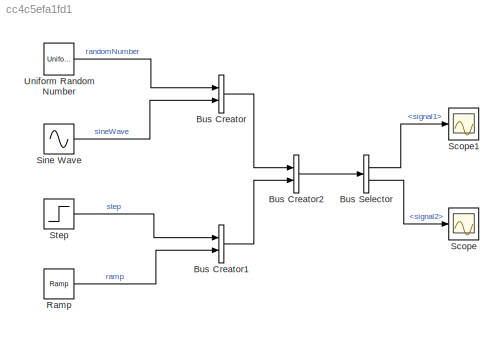
MODEL slx_cc4c5efa1fd1
KIND model
BLOCK [BusCreator] Bus Creator
  DisplayOption = bar
  Inputs = 2
  Ports = [2, 1]
BLOCK [BusCreator] Bus Creator1
  DisplayOption = bar
  Inputs = 2
  Ports = [2, 1]
BLOCK [BusCreator] Bus Creator2
  DisplayOption = bar
  Inputs = 2
  Ports = [2, 1]
BLOCK [BusSelector] Bus Selector
  OutputSignals = signal1,signal2
  Ports = [1, 2]
BLOCK [Reference] Ramp  REF=simulink/Sources/Ramp
  Ports = [0, 1]
  SourceBlock = simulink/Sources/Ramp
  SourceType = Ramp
  VectorParams1D = on
  X0 = 0
  slope = 1
  start = 0
BLOCK [Scope] Scope
  DataFormat = StructureWithTime
  Floating = off
  NumInputPorts = 1
  Ports = [1]
  SampleTime = 0
  ShowLegends = off
BLOCK [Scope] Scope1
  DataFormat = StructureWithTime
  Floating = off
  NumInputPorts = 1
  Ports = [1]
  SampleTime = 0
  SaveName = ScopeData1
  ShowLegends = off
BLOCK [Sin] Sine Wave
  Ports = [0, 1]
  SampleTime = 0
BLOCK [Step] Step
  After = k77
  SampleTime = 0
BLOCK [UniformRandomNumber] Uniform Random Number
  SampleTime = 0.1
LINE Bus Creator1:1 -> Bus Creator2:2
LINE Bus Creator2:1 -> Bus Selector:1
LINE Bus Creator:1 -> Bus Creator2:1
LINE Bus Selector:1 -> Scope1:1
LINE Bus Selector:2 -> Scope:1
LINE Ramp:1 -> Bus Creator1:2
LINE Sine Wave:1 -> Bus Creator:2
LINE Step:1 -> Bus Creator1:1
LINE Uniform Random Number:1 -> Bus Creator:1
